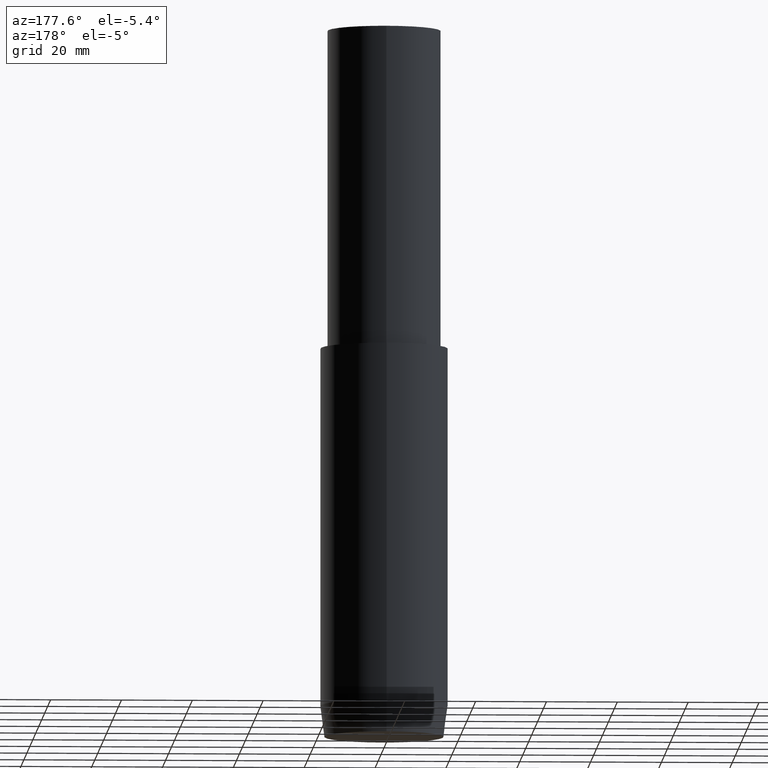
[diagram: clean part render]
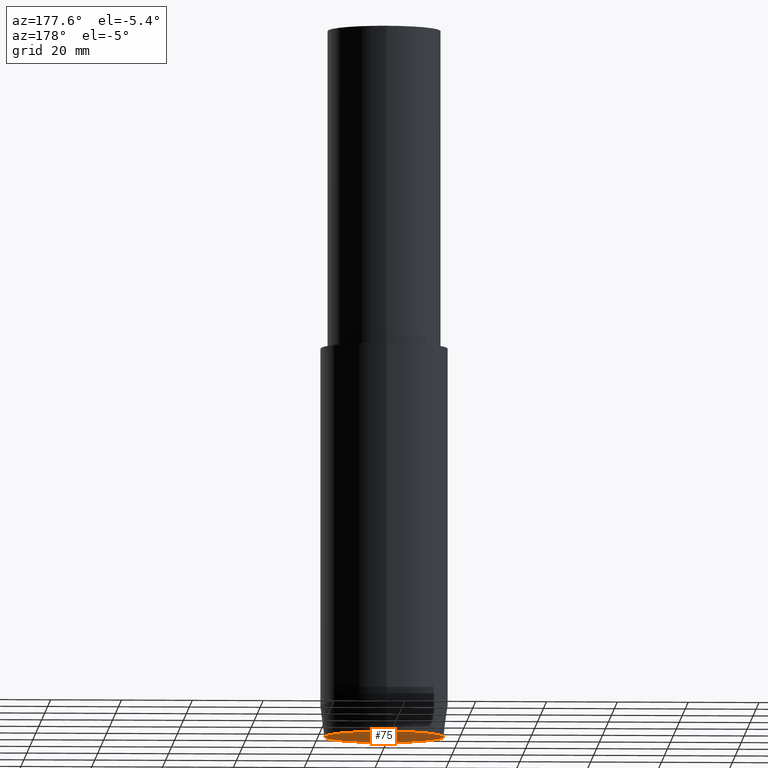
[diagram: same view with one face highlighted and labeled with its STEP entity id]
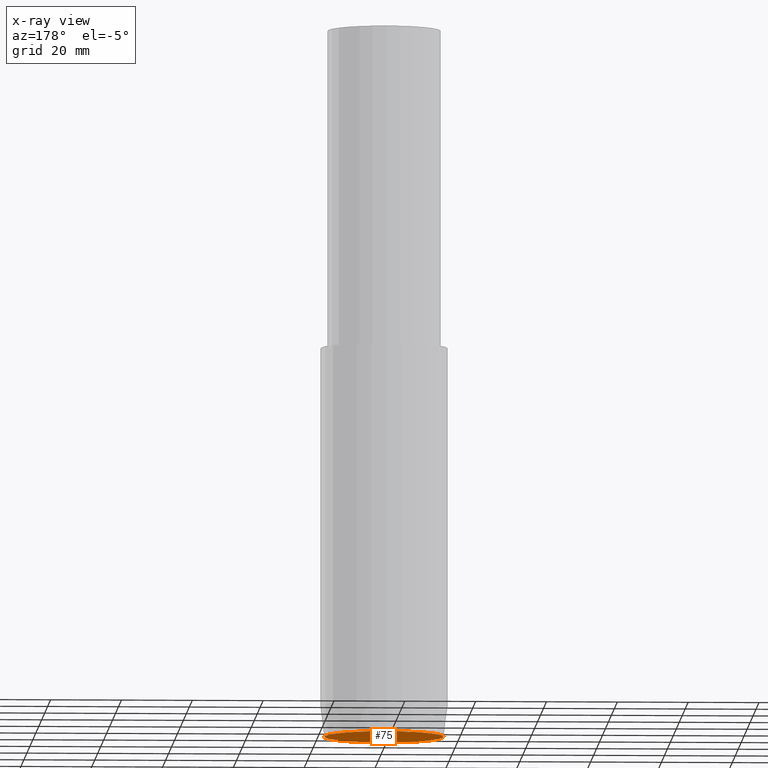
[diagram: x-ray of the same camera — body ghosted, the highlighted face saturated]
A machine part, auxiliary view. The second image highlights one B-rep face of the part: STEP entity #75.
The next image is the same camera in x-ray: the body ghosted, the highlighted face saturated — about 0% of this face is hidden behind the body in this view.
In plain terms, the highlighted planar face has unit normal (0, -0, -1).
Its self-contained STEP definition (entity closure, byte-faithful):
#75=ADVANCED_FACE('',(#82),#83,.T.);
#82=FACE_OUTER_BOUND('',#98,.T.);
#83=PLANE('',#99);
#98=EDGE_LOOP('',(#114));
#99=AXIS2_PLACEMENT_3D('',#115,#116,#117);
#114=ORIENTED_EDGE('',*,*,#142,.F.);
#115=CARTESIAN_POINT('',(-3.78653234506086E-029,8.42276530259914,6.25277607468888E-013));
#116=DIRECTION('',(6.12323399573677E-017,-7.41141529871996E-014,-1.0));
#117=DIRECTION('',(-4.53335585863379E-030,-1.0,7.41141529871996E-014));
#142=EDGE_CURVE('',#147,#147,#148,.T.);
#147=VERTEX_POINT('',#157);
#148=CIRCLE('',#158,16.8455306051983);
#157=CARTESIAN_POINT('',(0.0,16.8455306051983,0.0));
#158=AXIS2_PLACEMENT_3D('',#167,#168,#169);
#167=CARTESIAN_POINT('',(0.0,0.0,0.0));
#168=DIRECTION('',(-6.12323399573677E-017,1.81293794912064E-017,1.0));
#169=DIRECTION('',(-3.71704840254734E-033,1.0,-1.81293794912064E-017));